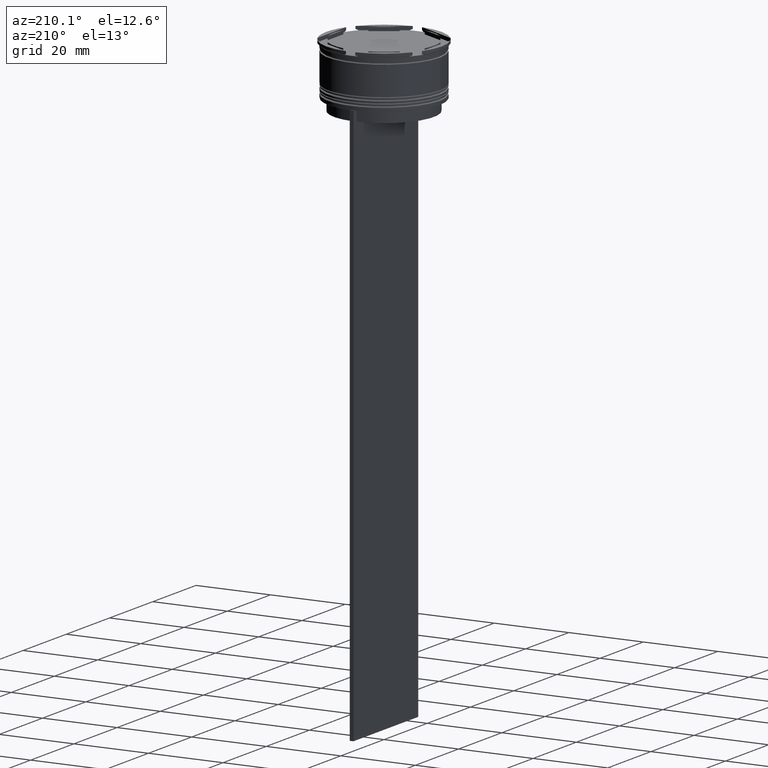
[diagram: clean part render]
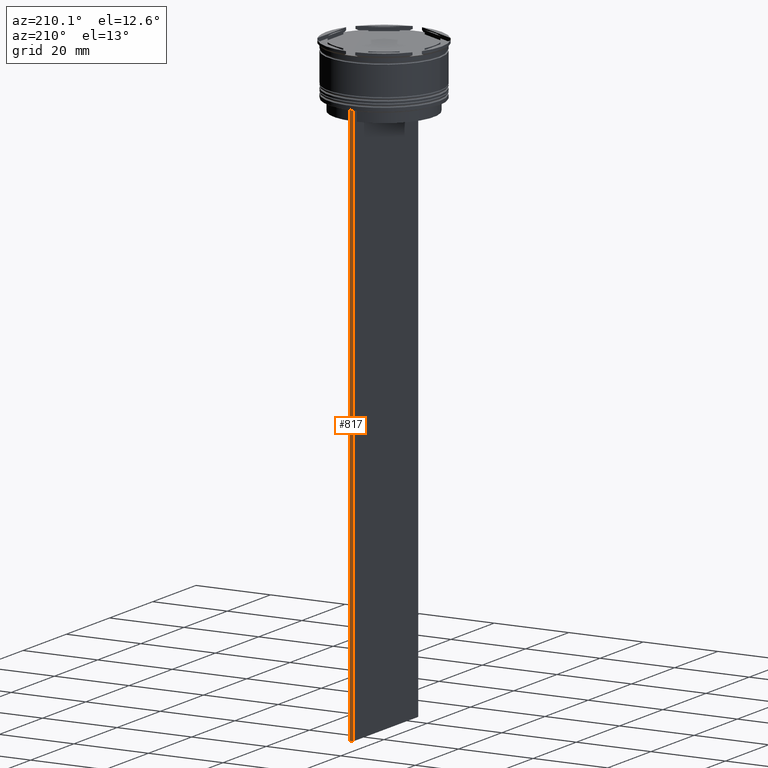
[diagram: same view with one face highlighted and labeled with its STEP entity id]
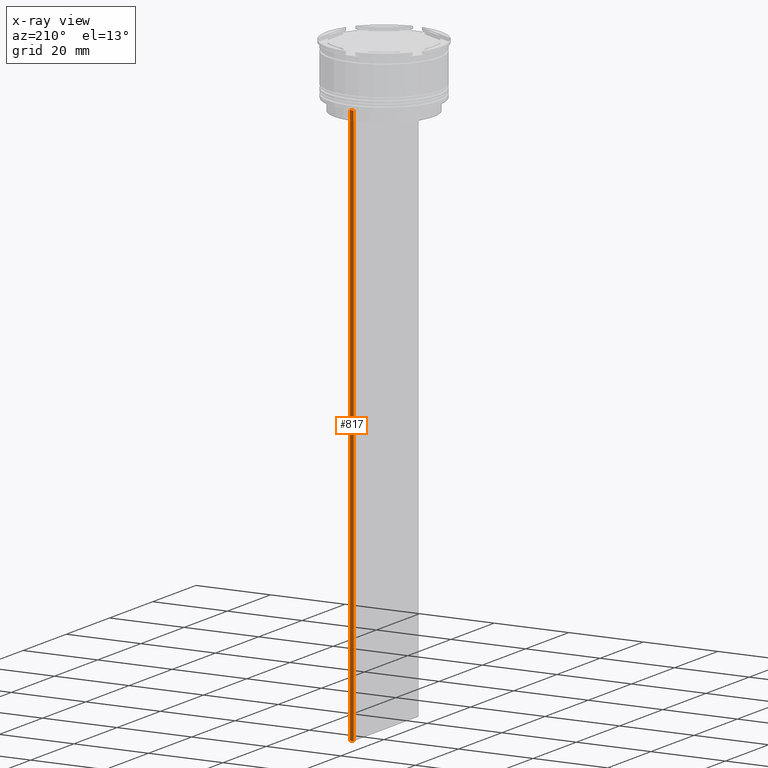
[diagram: x-ray of the same camera — body ghosted, the highlighted face saturated]
A machine part, auxiliary view. The second image highlights one B-rep face of the part: STEP entity #817.
The next image is the same camera in x-ray: the body ghosted, the highlighted face saturated — about 0% of this face is hidden behind the body in this view.
In plain terms, the highlighted planar face has unit normal (0, -1, -0).
Its self-contained STEP definition (entity closure, byte-faithful):
#115 = CARTESIAN_POINT ( 'NONE',  ( 0.5000000000000001110, 14.99999999999999645, -14.00000000000000178 ) ) ;
#269 = DIRECTION ( 'NONE',  ( -1.000000000000000000, 0.000000000000000000, 0.000000000000000000 ) ) ;
#295 = ORIENTED_EDGE ( 'NONE', *, *, #906, .T. ) ;
#387 = DIRECTION ( 'NONE',  ( 0.000000000000000000, 0.000000000000000000, -1.000000000000000000 ) ) ;
#437 = DIRECTION ( 'NONE',  ( 0.000000000000000000, 0.000000000000000000, -1.000000000000000000 ) ) ;
#487 = LINE ( 'NONE', #2048, #2816 ) ;
#523 = LINE ( 'NONE', #1635, #2863 ) ;
#548 = VECTOR ( 'NONE', #1036, 1000.000000000000000 ) ;
#562 = VECTOR ( 'NONE', #437, 1000.000000000000000 ) ;
#660 = EDGE_CURVE ( 'NONE', #1111, #1510, #2598, .T. ) ;
#799 = EDGE_CURVE ( 'NONE', #1111, #2219, #523, .T. ) ;
#817 = ADVANCED_FACE ( 'NONE', ( #2153 ), #2807, .F. ) ;
#906 = EDGE_CURVE ( 'NONE', #1068, #2219, #487, .T. ) ;
#909 = ORIENTED_EDGE ( 'NONE', *, *, #660, .T. ) ;
#1036 = DIRECTION ( 'NONE',  ( 1.000000000000000000, 0.000000000000000000, 0.000000000000000000 ) ) ;
#1068 = VERTEX_POINT ( 'NONE', #2193 ) ;
#1111 = VERTEX_POINT ( 'NONE', #1560 ) ;
#1280 = CARTESIAN_POINT ( 'NONE',  ( 0.5000000000000001110, 14.99999999999999645, 16.01666203960726165 ) ) ;
#1470 = ORIENTED_EDGE ( 'NONE', *, *, #2692, .T. ) ;
#1510 = VERTEX_POINT ( 'NONE', #2828 ) ;
#1560 = CARTESIAN_POINT ( 'NONE',  ( -0.4999999999999998890, 14.99999999999999645, -14.00000000000000178 ) ) ;
#1635 = CARTESIAN_POINT ( 'NONE',  ( -0.4999999999999998890, 14.99999999999999645, 16.01666203960726165 ) ) ;
#1946 = LINE ( 'NONE', #1280, #562 ) ;
#2008 = ORIENTED_EDGE ( 'NONE', *, *, #799, .F. ) ;
#2048 = CARTESIAN_POINT ( 'NONE',  ( 0.5000000000000001110, 14.99999999999999645, -163.9999999999999716 ) ) ;
#2064 = DIRECTION ( 'NONE',  ( 0.000000000000000000, 0.000000000000000000, -1.000000000000000000 ) ) ;
#2153 = FACE_OUTER_BOUND ( 'NONE', #2826, .T. ) ;
#2193 = CARTESIAN_POINT ( 'NONE',  ( 0.5000000000000001110, 14.99999999999999645, -163.9999999999999716 ) ) ;
#2219 = VERTEX_POINT ( 'NONE', #2535 ) ;
#2261 = AXIS2_PLACEMENT_3D ( 'NONE', #2588, #2370, #387 ) ;
#2370 = DIRECTION ( 'NONE',  ( 0.000000000000000000, -1.000000000000000000, -0.000000000000000000 ) ) ;
#2535 = CARTESIAN_POINT ( 'NONE',  ( -0.4999999999999998890, 14.99999999999999645, -163.9999999999999716 ) ) ;
#2588 = CARTESIAN_POINT ( 'NONE',  ( 0.5000000000000001110, 14.99999999999999645, 16.01666203960726165 ) ) ;
#2598 = LINE ( 'NONE', #115, #548 ) ;
#2692 = EDGE_CURVE ( 'NONE', #1510, #1068, #1946, .T. ) ;
#2807 = PLANE ( 'NONE',  #2261 ) ;
#2816 = VECTOR ( 'NONE', #269, 1000.000000000000000 ) ;
#2826 = EDGE_LOOP ( 'NONE', ( #2008, #909, #1470, #295 ) ) ;
#2828 = CARTESIAN_POINT ( 'NONE',  ( 0.5000000000000001110, 14.99999999999999645, -14.00000000000000178 ) ) ;
#2863 = VECTOR ( 'NONE', #2064, 1000.000000000000000 ) ;